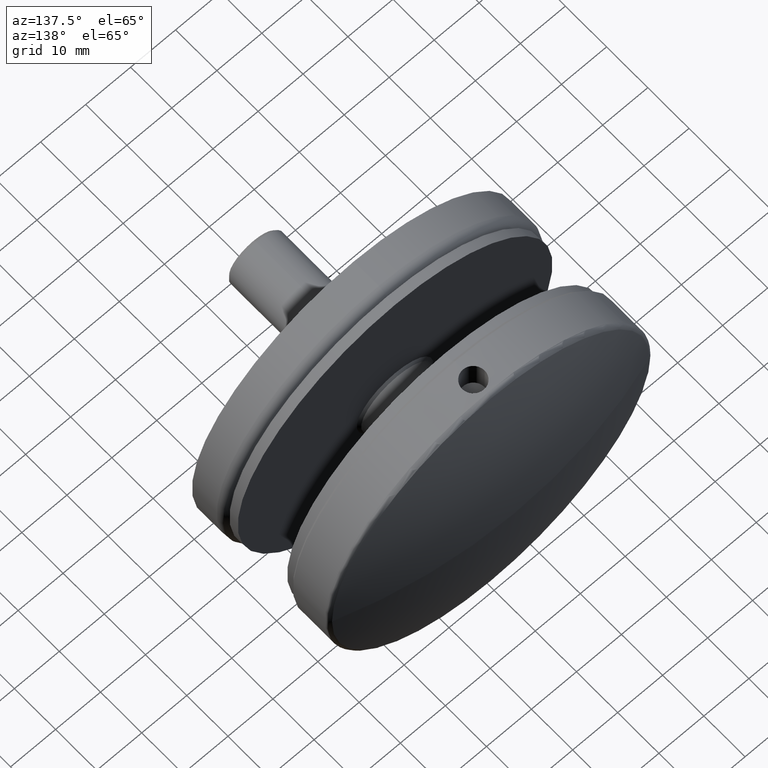
[diagram: clean part render]
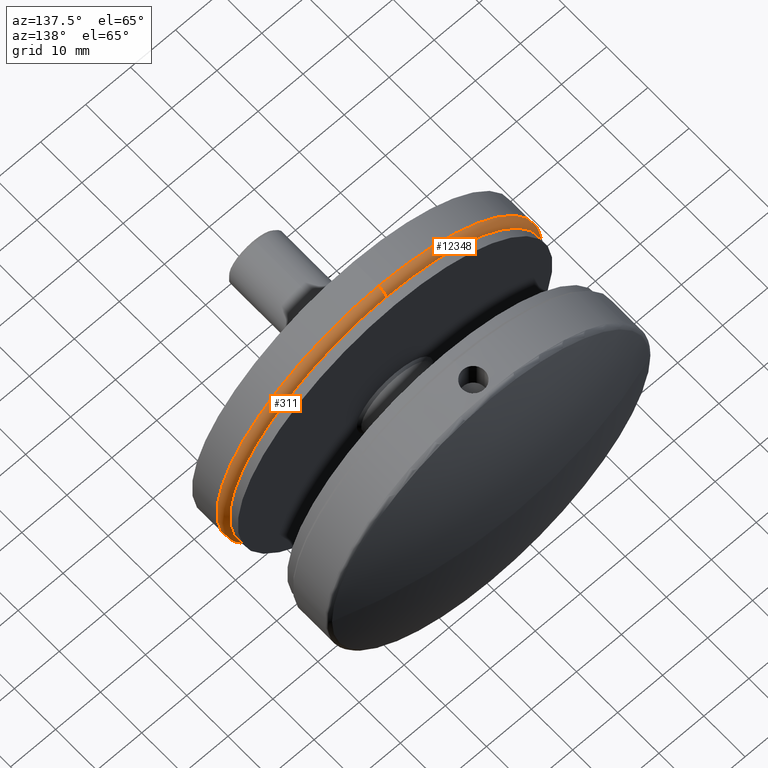
[diagram: same view with one multi-face feature highlighted, each face labeled with its STEP entity id]
A machine part, auxiliary view. The highlighted faces form ONE feature: a constant-radius fillet chain: 2 tangent blend faces with common blend radius 2 mm. The faces share edges in the B-rep.
Their STEP definitions:
[1] entity #311 (Torus):
#311 = ADVANCED_FACE ( 'NONE', ( #8495 ), #12126, .T. ) ;
#384 = VERTEX_POINT ( 'NONE', #2088 ) ;
#431 = EDGE_CURVE ( 'NONE', #12287, #2530, #12830, .T. ) ;
#584 = AXIS2_PLACEMENT_3D ( 'NONE', #13615, #9160, #6965 ) ;
#1098 = DIRECTION ( 'NONE',  ( 0.000000000000000000, 0.000000000000000000, -1.000000000000000000 ) ) ;
#1364 = CARTESIAN_POINT ( 'NONE',  ( 0.000000000000000000, 5.999999999999986677, -36.00000000000000000 ) ) ;
#1900 = DIRECTION ( 'NONE',  ( 0.000000000000000000, 0.000000000000000000, -1.000000000000000000 ) ) ;
#2087 = CARTESIAN_POINT ( 'NONE',  ( 4.408728476930470856E-15, 5.999999999999986677, 36.00000000000000000 ) ) ;
#2088 = CARTESIAN_POINT ( 'NONE',  ( 4.286263797015734130E-15, 8.000000000000000000, 33.99999999999997868 ) ) ;
#2354 = CARTESIAN_POINT ( 'NONE',  ( 0.000000000000000000, 8.000000000000000000, 0.000000000000000000 ) ) ;
#2530 = VERTEX_POINT ( 'NONE', #1364 ) ;
#3688 = DIRECTION ( 'NONE',  ( -0.000000000000000000, -1.000000000000000000, -0.000000000000000000 ) ) ;
#3752 = AXIS2_PLACEMENT_3D ( 'NONE', #2354, #10135, #1098 ) ;
#3771 = EDGE_LOOP ( 'NONE', ( #13491, #12856, #14092, #10049 ) ) ;
#4016 = CIRCLE ( 'NONE', #3752, 33.99999999999997868 ) ;
#4289 = CIRCLE ( 'NONE', #5274, 36.00000000000000000 ) ;
#4336 = CARTESIAN_POINT ( 'NONE',  ( 0.000000000000000000, 8.000000000000000000, -33.99999999999997868 ) ) ;
#5274 = AXIS2_PLACEMENT_3D ( 'NONE', #8176, #3688, #10529 ) ;
#5645 = AXIS2_PLACEMENT_3D ( 'NONE', #12329, #6787, #6735 ) ;
#6585 = VERTEX_POINT ( 'NONE', #2087 ) ;
#6735 = DIRECTION ( 'NONE',  ( 0.000000000000000000, 0.000000000000000000, 1.000000000000000000 ) ) ;
#6787 = DIRECTION ( 'NONE',  ( -1.000000000000000000, 0.000000000000000000, 0.000000000000000000 ) ) ;
#6965 = DIRECTION ( 'NONE',  ( -1.224646799147353454E-16, 0.000000000000000000, -1.000000000000000000 ) ) ;
#7378 = CIRCLE ( 'NONE', #584, 2.000000000000001776 ) ;
#7476 = EDGE_CURVE ( 'NONE', #2530, #6585, #4289, .T. ) ;
#7505 = CARTESIAN_POINT ( 'NONE',  ( 0.000000000000000000, 6.000000000000000000, 0.000000000000000000 ) ) ;
#8176 = CARTESIAN_POINT ( 'NONE',  ( 0.000000000000000000, 5.999999999999986677, 0.000000000000000000 ) ) ;
#8495 = FACE_OUTER_BOUND ( 'NONE', #3771, .T. ) ;
#8573 = DIRECTION ( 'NONE',  ( -0.000000000000000000, -1.000000000000000000, -0.000000000000000000 ) ) ;
#8668 = AXIS2_PLACEMENT_3D ( 'NONE', #7505, #8573, #1900 ) ;
#8887 = EDGE_CURVE ( 'NONE', #384, #6585, #7378, .T. ) ;
#9160 = DIRECTION ( 'NONE',  ( 1.000000000000000000, 0.000000000000000000, -1.224646799147353207E-16 ) ) ;
#10049 = ORIENTED_EDGE ( 'NONE', *, *, #431, .F. ) ;
#10135 = DIRECTION ( 'NONE',  ( -0.000000000000000000, -1.000000000000000000, -0.000000000000000000 ) ) ;
#10529 = DIRECTION ( 'NONE',  ( 0.000000000000000000, 0.000000000000000000, -1.000000000000000000 ) ) ;
#12126 = TOROIDAL_SURFACE ( 'NONE', #8668, 33.99999999999999289, 2.000000000000000888 ) ;
#12287 = VERTEX_POINT ( 'NONE', #4336 ) ;
#12329 = CARTESIAN_POINT ( 'NONE',  ( 0.000000000000000000, 6.000000000000000000, -33.99999999999999289 ) ) ;
#12830 = CIRCLE ( 'NONE', #5645, 2.000000000000001776 ) ;
#12856 = ORIENTED_EDGE ( 'NONE', *, *, #8887, .T. ) ;
#13491 = ORIENTED_EDGE ( 'NONE', *, *, #14292, .T. ) ;
#13615 = CARTESIAN_POINT ( 'NONE',  ( 4.163799117100999770E-15, 6.000000000000000000, 33.99999999999999289 ) ) ;
#14092 = ORIENTED_EDGE ( 'NONE', *, *, #7476, .F. ) ;
#14292 = EDGE_CURVE ( 'NONE', #12287, #384, #4016, .T. ) ;
[2] entity #12348 (Torus):
#85 = CARTESIAN_POINT ( 'NONE',  ( 0.000000000000000000, 6.000000000000000000, 0.000000000000000000 ) ) ;
#384 = VERTEX_POINT ( 'NONE', #2088 ) ;
#431 = EDGE_CURVE ( 'NONE', #12287, #2530, #12830, .T. ) ;
#584 = AXIS2_PLACEMENT_3D ( 'NONE', #13615, #9160, #6965 ) ;
#1182 = FACE_OUTER_BOUND ( 'NONE', #4149, .T. ) ;
#1284 = EDGE_CURVE ( 'NONE', #6585, #2530, #9534, .T. ) ;
#1364 = CARTESIAN_POINT ( 'NONE',  ( 0.000000000000000000, 5.999999999999986677, -36.00000000000000000 ) ) ;
#2087 = CARTESIAN_POINT ( 'NONE',  ( 4.408728476930470856E-15, 5.999999999999986677, 36.00000000000000000 ) ) ;
#2088 = CARTESIAN_POINT ( 'NONE',  ( 4.286263797015734130E-15, 8.000000000000000000, 33.99999999999997868 ) ) ;
#2530 = VERTEX_POINT ( 'NONE', #1364 ) ;
#3844 = AXIS2_PLACEMENT_3D ( 'NONE', #5860, #8637, #11735 ) ;
#3866 = AXIS2_PLACEMENT_3D ( 'NONE', #10319, #4701, #4598 ) ;
#4149 = EDGE_LOOP ( 'NONE', ( #6941, #9838, #8995, #5696 ) ) ;
#4336 = CARTESIAN_POINT ( 'NONE',  ( 0.000000000000000000, 8.000000000000000000, -33.99999999999997868 ) ) ;
#4598 = DIRECTION ( 'NONE',  ( 0.000000000000000000, 0.000000000000000000, -1.000000000000000000 ) ) ;
#4701 = DIRECTION ( 'NONE',  ( -0.000000000000000000, -1.000000000000000000, -0.000000000000000000 ) ) ;
#5645 = AXIS2_PLACEMENT_3D ( 'NONE', #12329, #6787, #6735 ) ;
#5678 = DIRECTION ( 'NONE',  ( 0.000000000000000000, 0.000000000000000000, -1.000000000000000000 ) ) ;
#5696 = ORIENTED_EDGE ( 'NONE', *, *, #1284, .F. ) ;
#5860 = CARTESIAN_POINT ( 'NONE',  ( 0.000000000000000000, 5.999999999999986677, 0.000000000000000000 ) ) ;
#5994 = EDGE_CURVE ( 'NONE', #384, #12287, #8316, .T. ) ;
#6585 = VERTEX_POINT ( 'NONE', #2087 ) ;
#6735 = DIRECTION ( 'NONE',  ( 0.000000000000000000, 0.000000000000000000, 1.000000000000000000 ) ) ;
#6787 = DIRECTION ( 'NONE',  ( -1.000000000000000000, 0.000000000000000000, 0.000000000000000000 ) ) ;
#6941 = ORIENTED_EDGE ( 'NONE', *, *, #8887, .F. ) ;
#6965 = DIRECTION ( 'NONE',  ( -1.224646799147353454E-16, 0.000000000000000000, -1.000000000000000000 ) ) ;
#7378 = CIRCLE ( 'NONE', #584, 2.000000000000001776 ) ;
#8316 = CIRCLE ( 'NONE', #3866, 33.99999999999997868 ) ;
#8637 = DIRECTION ( 'NONE',  ( -0.000000000000000000, -1.000000000000000000, -0.000000000000000000 ) ) ;
#8887 = EDGE_CURVE ( 'NONE', #384, #6585, #7378, .T. ) ;
#8995 = ORIENTED_EDGE ( 'NONE', *, *, #431, .T. ) ;
#9160 = DIRECTION ( 'NONE',  ( 1.000000000000000000, 0.000000000000000000, -1.224646799147353207E-16 ) ) ;
#9534 = CIRCLE ( 'NONE', #3844, 36.00000000000000000 ) ;
#9838 = ORIENTED_EDGE ( 'NONE', *, *, #5994, .T. ) ;
#9888 = TOROIDAL_SURFACE ( 'NONE', #12788, 33.99999999999999289, 2.000000000000000888 ) ;
#10026 = DIRECTION ( 'NONE',  ( -0.000000000000000000, -1.000000000000000000, -0.000000000000000000 ) ) ;
#10319 = CARTESIAN_POINT ( 'NONE',  ( 0.000000000000000000, 8.000000000000000000, 0.000000000000000000 ) ) ;
#11735 = DIRECTION ( 'NONE',  ( 0.000000000000000000, 0.000000000000000000, -1.000000000000000000 ) ) ;
#12287 = VERTEX_POINT ( 'NONE', #4336 ) ;
#12329 = CARTESIAN_POINT ( 'NONE',  ( 0.000000000000000000, 6.000000000000000000, -33.99999999999999289 ) ) ;
#12348 = ADVANCED_FACE ( 'NONE', ( #1182 ), #9888, .T. ) ;
#12788 = AXIS2_PLACEMENT_3D ( 'NONE', #85, #10026, #5678 ) ;
#12830 = CIRCLE ( 'NONE', #5645, 2.000000000000001776 ) ;
#13615 = CARTESIAN_POINT ( 'NONE',  ( 4.163799117100999770E-15, 6.000000000000000000, 33.99999999999999289 ) ) ;